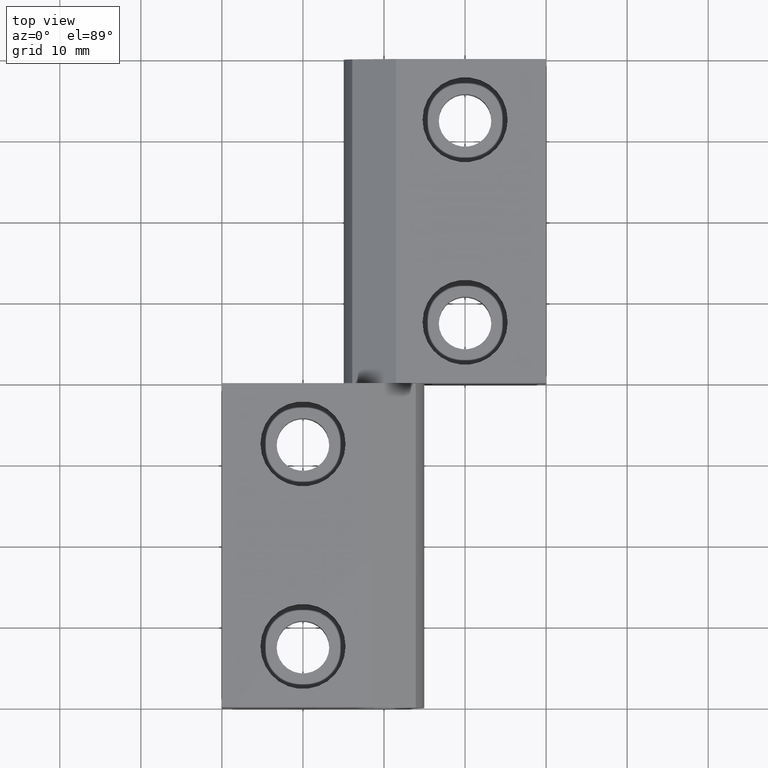
[diagram: clean part render]
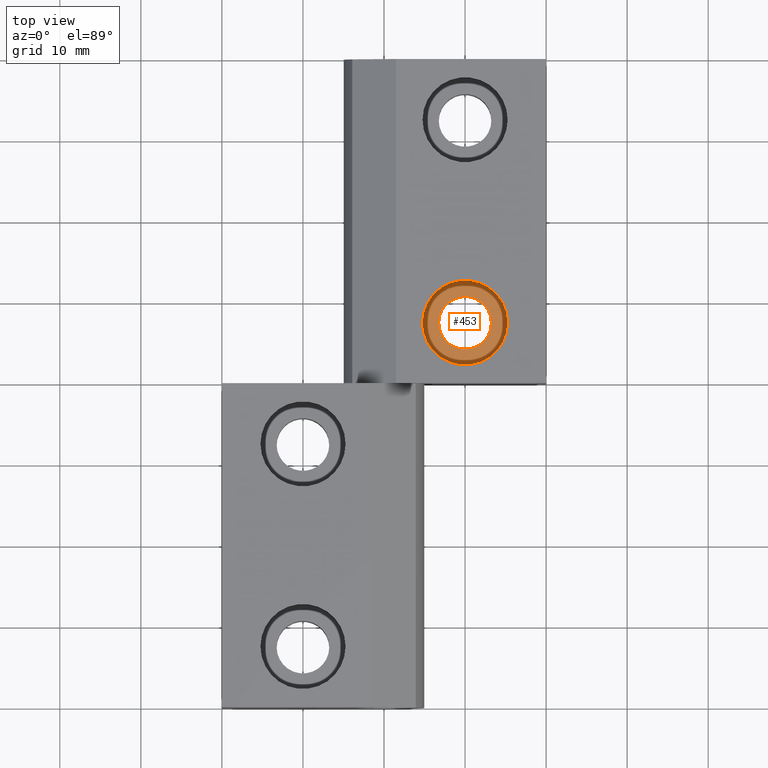
[diagram: same view with one face highlighted and labeled with its STEP entity id]
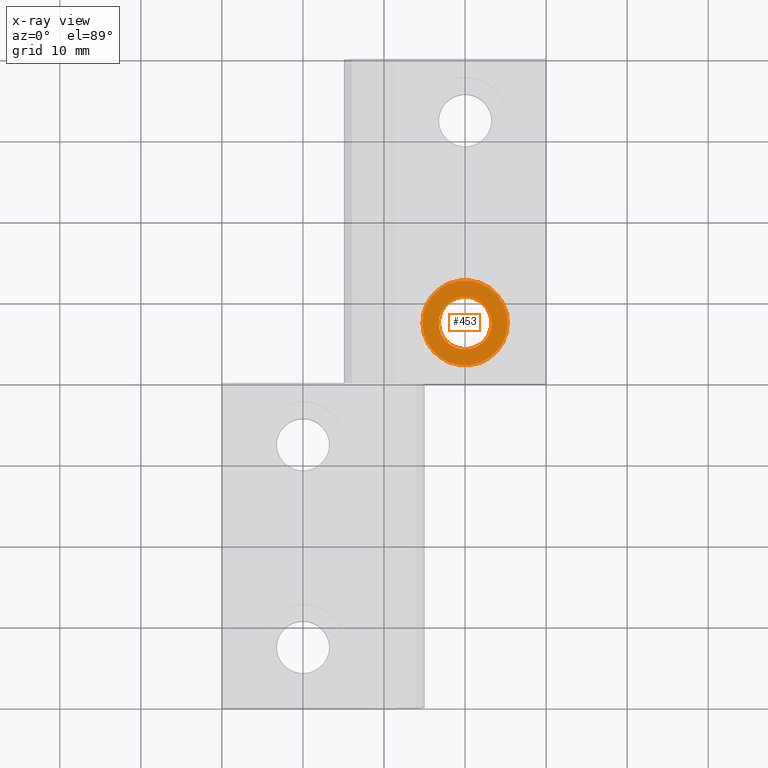
[diagram: x-ray of the same camera — body ghosted, the highlighted face saturated]
A machine part, top view. The second image highlights one B-rep face of the part: STEP entity #453.
The next image is the same camera in x-ray: the body ghosted, the highlighted face saturated — about 0% of this face is hidden behind the body in this view.
In plain terms, the highlighted planar face has unit normal (0, 0, -1).
Its self-contained STEP definition (entity closure, byte-faithful):
#394=CARTESIAN_POINT('',(13.249979999960033,47.500065000130235,1.999995999991828));
#395=VERTEX_POINT('',#394);
#405=CARTESIAN_POINT('',(6.749979999960033,47.500065000130235,1.999995999991828));
#406=VERTEX_POINT('',#405);
#407=CARTESIAN_POINT('',(9.999979999960033,47.500065000130235,1.999995999991828));
#408=DIRECTION('',(0.0,0.0,1.0));
#409=DIRECTION('',(1.0,0.0,0.0));
#410=AXIS2_PLACEMENT_3D('',#407,#408,#409);
#411=CIRCLE('',#410,3.250000000000000);
#412=EDGE_CURVE('',#395,#406,#411,.T.);
#414=CARTESIAN_POINT('',(9.999979999960033,47.500065000130235,1.999995999991828));
#415=DIRECTION('',(0.0,0.0,1.0));
#416=DIRECTION('',(1.0,0.0,0.0));
#417=AXIS2_PLACEMENT_3D('',#414,#415,#416);
#418=CIRCLE('',#417,3.250000000000000);
#419=EDGE_CURVE('',#406,#395,#418,.T.);
#424=CARTESIAN_POINT('',(-0.500020000039967,37.000065000130235,1.999995999991827));
#425=DIRECTION('',(0.0,0.0,-1.0));
#426=DIRECTION('',(0.0,1.0,0.0));
#427=AXIS2_PLACEMENT_3D('',#424,#425,#426);
#428=PLANE('',#427);
#429=CARTESIAN_POINT('',(15.249979999960033,47.500065000130235,1.999995999991828));
#430=VERTEX_POINT('',#429);
#431=CARTESIAN_POINT('',(4.749979999960033,47.500065000130235,1.999995999991828));
#432=VERTEX_POINT('',#431);
#433=CARTESIAN_POINT('',(9.999979999960033,47.500065000130235,1.999995999991828));
#434=DIRECTION('',(0.0,0.0,1.0));
#435=DIRECTION('',(1.0,0.0,0.0));
#436=AXIS2_PLACEMENT_3D('',#433,#434,#435);
#437=CIRCLE('',#436,5.250000000000000);
#438=EDGE_CURVE('',#430,#432,#437,.T.);
#439=ORIENTED_EDGE('',*,*,#438,.T.);
#440=CARTESIAN_POINT('',(9.999979999960033,47.500065000130235,1.999995999991828));
#441=DIRECTION('',(0.0,0.0,1.0));
#442=DIRECTION('',(1.0,0.0,0.0));
#443=AXIS2_PLACEMENT_3D('',#440,#441,#442);
#444=CIRCLE('',#443,5.250000000000000);
#445=EDGE_CURVE('',#432,#430,#444,.T.);
#446=ORIENTED_EDGE('',*,*,#445,.T.);
#447=EDGE_LOOP('',(#439,#446));
#448=FACE_OUTER_BOUND('',#447,.T.);
#449=ORIENTED_EDGE('',*,*,#419,.F.);
#450=ORIENTED_EDGE('',*,*,#412,.F.);
#451=EDGE_LOOP('',(#449,#450));
#452=FACE_BOUND('',#451,.T.);
#453=ADVANCED_FACE('',(#448,#452),#428,.F.);